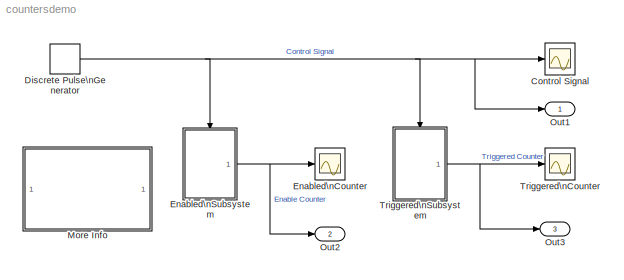
MODEL countersdemo
KIND model
BLOCK [Scope] Control Signal
  DataFormat = Array
  NumInputPorts = 1
  Ports = [1]
  SaveName = Control_Signal
  SaveToWorkspace = on
  YMax = 1.1
  YMin = -0.1
  ZoomMode = xonly
BLOCK [DiscretePulseGenerator] Discrete Pulse\nGenerator
  Period = 40
  Ports = [0, 1]
  PulseWidth = 20
  SampleTime = 0.01
BLOCK [Scope] Enabled\nCounter
  DataFormat = Array
  NumInputPorts = 1
  Ports = [1]
  SaveName = Enabled_Counter
  SaveToWorkspace = on
  TimeRange = 2
  YMax = 20
  YMin = -0.1
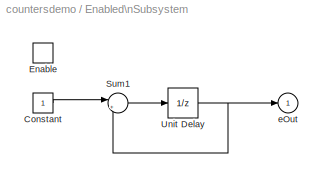
BLOCK [SubSystem] Enabled\nSubsystem
  MinAlgLoopOccurrences = off
  Ports = [0, 1, 1]
  PropExecContextAcrossSSBoundary = on
  RTWSystemCode = Auto
  TreatAsAtomicUnit = on
BLOCK [Constant] Enabled\nSubsystem/Constant
BLOCK [EnablePort] Enabled\nSubsystem/Enable
  Ports = []
  StatesWhenEnabling = reset
BLOCK [Sum] Enabled\nSubsystem/Sum1
  IconShape = round
  Inputs = |++
  Ports = [2, 1]
BLOCK [UnitDelay] Enabled\nSubsystem/Unit Delay
  SampleTime = .01
BLOCK [Outport] Enabled\nSubsystem/eOut
  IconDisplay = Port number
  InitialOutput = 0
BLOCK [SubSystem] More Info
  MaskDisplay = disp('Double click\\nhere for\\ninformation on\\nthis demonstration')
  MaskIconFrame = on
  MaskIconOpaque = on
  MaskIconRotate = none
  MaskIconUnits = autoscale
  MinAlgLoopOccurrences = off
  Ports = []
  PropExecContextAcrossSSBoundary = on
  RTWSystemCode = Auto
  TreatAsAtomicUnit = off
BLOCK [Outport] Out1
  IconDisplay = Port number
BLOCK [Outport] Out2
  IconDisplay = Port number
  Port = 2
BLOCK [Outport] Out3
  IconDisplay = Port number
  Port = 3
BLOCK [Scope] Triggered\nCounter
  DataFormat = Array
  NumInputPorts = 1
  Ports = [1]
  SaveName = Triggered_Counter
  SaveToWorkspace = on
  TimeRange = 2
  YMax = 4.1
  YMin = -0.1
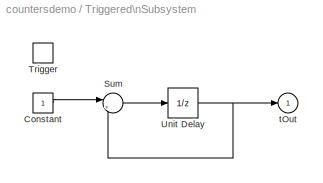
BLOCK [SubSystem] Triggered\nSubsystem
  MinAlgLoopOccurrences = off
  Ports = [0, 1, 0, 1]
  PropExecContextAcrossSSBoundary = on
  RTWSystemCode = Auto
  TreatAsAtomicUnit = on
BLOCK [Constant] Triggered\nSubsystem/Constant
BLOCK [Sum] Triggered\nSubsystem/Sum
  IconShape = round
  Inputs = |++
  Ports = [2, 1]
BLOCK [TriggerPort] Triggered\nSubsystem/Trigger
  Ports = []
BLOCK [UnitDelay] Triggered\nSubsystem/Unit Delay
  SampleTime = -1
BLOCK [Outport] Triggered\nSubsystem/tOut
  IconDisplay = Port number
  InitialOutput = 0
  OutputWhenDisabled = reset
ANNOTATION More Info: Enabled Subsystem Demonstration
ANNOTATION More Info: This demonstration uses counter circuits to contrast the execution of\nblocks in enabled subsystems and triggered subsystems for the same\ncontrol signal. After running the simulation, the scope shows three plots. \n\nThe first of these plots shows the control signal which is the output of the \ndiscrete pulse generator. \n\nThe second plot shows the output of the counter circuit in the enabled\ns...<+407ch>
NET Discrete Pulse\nGenerator:1 -> Control Signal:1, Enabled\nSubsystem:enable, Out1:1, Triggered\nSubsystem:trigger
LINE Enabled\nSubsystem/Constant:1 -> Enabled\nSubsystem/Sum1:1
LINE Enabled\nSubsystem/Sum1:1 -> Enabled\nSubsystem/Unit Delay:1
NET Enabled\nSubsystem/Unit Delay:1 -> Enabled\nSubsystem/Sum1:2, Enabled\nSubsystem/eOut:1
NET Enabled\nSubsystem:1 -> Enabled\nCounter:1, Out2:1
LINE Triggered\nSubsystem/Constant:1 -> Triggered\nSubsystem/Sum:1
LINE Triggered\nSubsystem/Sum:1 -> Triggered\nSubsystem/Unit Delay:1
NET Triggered\nSubsystem/Unit Delay:1 -> Triggered\nSubsystem/Sum:2, Triggered\nSubsystem/tOut:1
NET Triggered\nSubsystem:1 -> Out3:1, Triggered\nCounter:1
note: NET lines group one-source signal fan-out (src -> all destinations, sorted); 1:1 wires keep LINE
